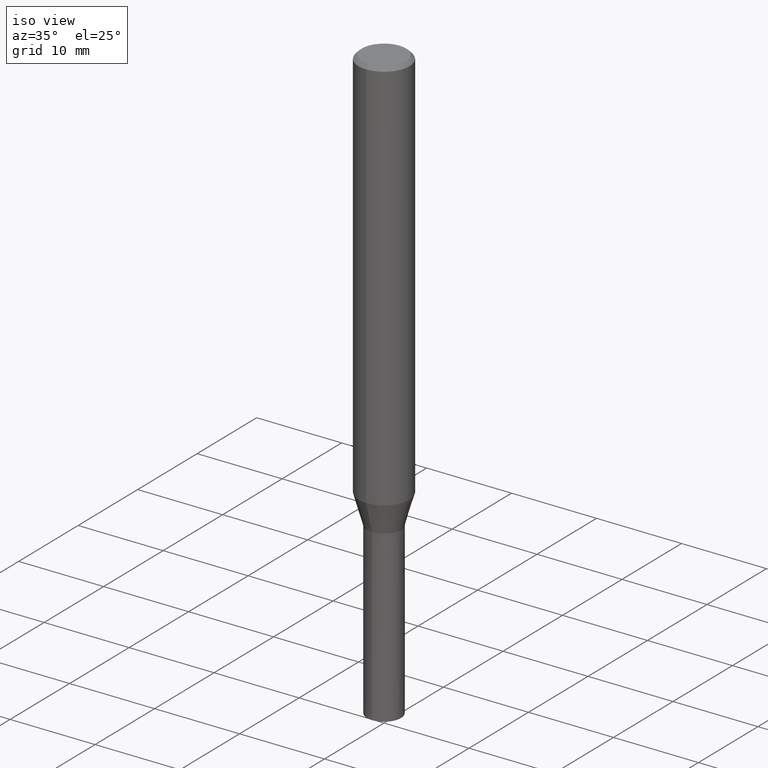
[diagram: clean part render]
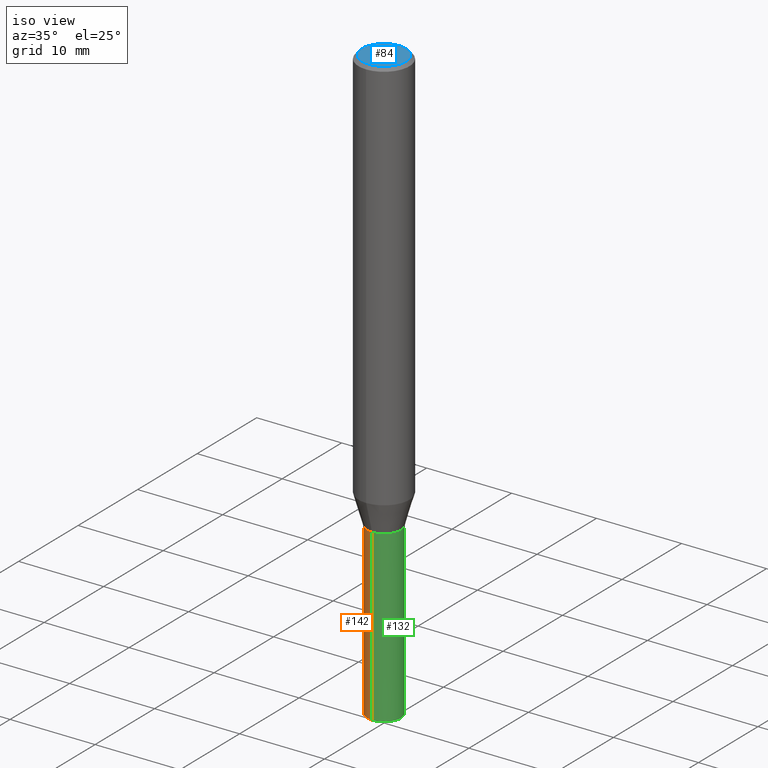
[diagram: same view with three faces highlighted in distinct colors, each labeled with its STEP entity id]
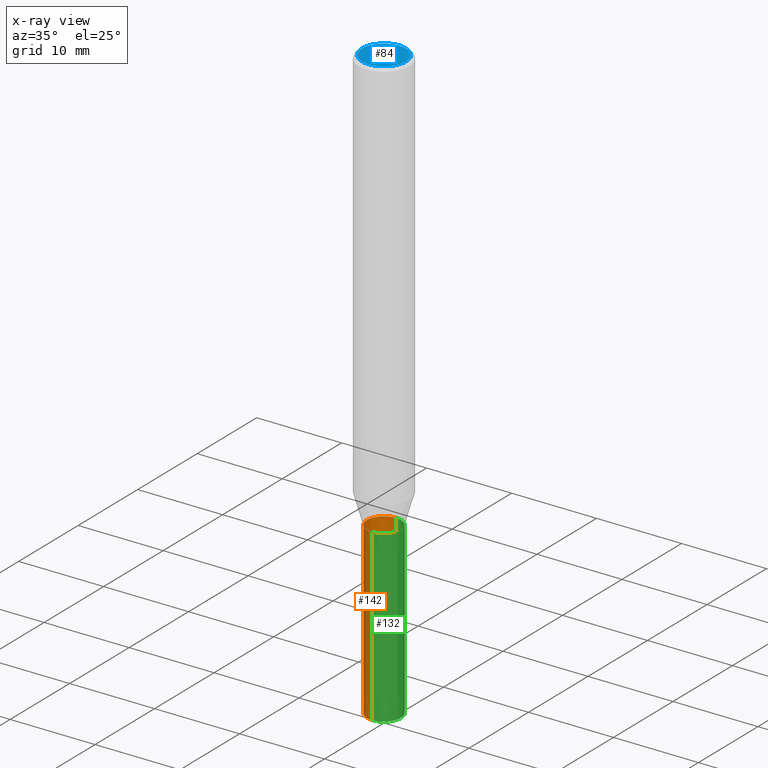
[diagram: x-ray of the same camera — body ghosted, the three highlighted faces saturated]
A machine part, iso view with three faces highlighted in distinct colors.
The next image is the same camera in x-ray (body ghosted, the three faces saturated) — at least one of them is partly hidden behind the body in this view.
Their STEP definitions:

[orange] entity #142 — the highlighted conical surface has half-angle 0 deg.
#90=EDGE_CURVE('',#134,#164,#213,.T.);
#94=VERTEX_POINT('',#217);
#100=EDGE_CURVE('',#134,#94,#224,.T.);
#134=VERTEX_POINT('',#264);
#142=ADVANCED_FACE('',(#272),#273,.T.);
#162=VERTEX_POINT('',#295);
#164=VERTEX_POINT('',#297);
#168=EDGE_CURVE('',#164,#162,#301,.T.);
#184=EDGE_CURVE('',#162,#94,#319,.T.);
#213=LINE('',#342,#343);
#217=CARTESIAN_POINT('',(0.0,2.0,-70.0));
#224=CIRCLE('',#358,2.0);
#264=CARTESIAN_POINT('',(2.44921270764475E-016,-2.0,-70.0));
#272=FACE_OUTER_BOUND('',#419,.T.);
#273=CONICAL_SURFACE('',#420,1.99995,4.99999999995778E-006);
#295=CARTESIAN_POINT('',(0.0,1.9999,-50.0));
#297=CARTESIAN_POINT('',(2.44909024700937E-016,-1.9999,-50.0));
#301=CIRCLE('',#452,1.9999);
#319=LINE('',#473,#474);
#342=CARTESIAN_POINT('',(2.44915147732706E-016,-1.99995,-60.0));
#343=VECTOR('',#493,1.0);
#358=AXIS2_PLACEMENT_3D('',#504,#505,#506);
#419=EDGE_LOOP('',(#576,#577,#578,#579));
#420=AXIS2_PLACEMENT_3D('',#580,#581,#582);
#452=AXIS2_PLACEMENT_3D('',#607,#608,#609);
#473=CARTESIAN_POINT('',(-2.44915147732706E-016,1.99995,-60.0));
#474=VECTOR('',#623,1.0);
#493=DIRECTION('',(-6.12303176903467E-022,4.99999999993695E-006,0.9999999999875));
#504=CARTESIAN_POINT('',(0.0,0.0,-70.0));
#505=DIRECTION('',(0.0,0.0,-1.0));
#506=DIRECTION('',(0.0,1.0,0.0));
#576=ORIENTED_EDGE('',*,*,#184,.T.);
#577=ORIENTED_EDGE('',*,*,#100,.F.);
#578=ORIENTED_EDGE('',*,*,#90,.T.);
#579=ORIENTED_EDGE('',*,*,#168,.T.);
#580=CARTESIAN_POINT('',(0.0,0.0,-60.0));
#581=DIRECTION('',(0.0,-0.0,-1.0));
#582=DIRECTION('',(0.0,1.0,0.0));
#607=CARTESIAN_POINT('',(0.0,0.0,-50.0));
#608=DIRECTION('',(0.0,0.0,-1.0));
#609=DIRECTION('',(0.0,1.0,0.0));
#623=DIRECTION('',(-6.12303176903467E-022,4.99999999993695E-006,-0.9999999999875));

[blue] entity #84 — the highlighted planar face has unit normal (-0, 0, 1).
#84=ADVANCED_FACE('',(#205),#206,.T.);
#88=EDGE_CURVE('',#154,#138,#211,.T.);
#130=EDGE_CURVE('',#138,#154,#259,.T.);
#138=VERTEX_POINT('',#268);
#154=VERTEX_POINT('',#287);
#205=FACE_OUTER_BOUND('',#332,.T.);
#206=PLANE('',#333);
#211=CIRCLE('',#339,2.6);
#259=CIRCLE('',#403,2.6);
#268=CARTESIAN_POINT('',(0.0,2.6,0.0));
#287=CARTESIAN_POINT('',(3.18397651993818E-016,-2.6,0.0));
#332=EDGE_LOOP('',(#477,#478));
#333=AXIS2_PLACEMENT_3D('',#479,#480,#481);
#339=AXIS2_PLACEMENT_3D('',#490,#491,#492);
#403=AXIS2_PLACEMENT_3D('',#560,#561,#562);
#477=ORIENTED_EDGE('',*,*,#130,.F.);
#478=ORIENTED_EDGE('',*,*,#88,.F.);
#479=CARTESIAN_POINT('',(0.0,1.3,0.0));
#480=DIRECTION('',(-0.0,0.0,1.0));
#481=DIRECTION('',(0.0,-1.0,0.0));
#490=CARTESIAN_POINT('',(0.0,0.0,0.0));
#491=DIRECTION('',(0.0,0.0,-1.0));
#492=DIRECTION('',(0.0,1.0,0.0));
#560=CARTESIAN_POINT('',(0.0,0.0,0.0));
#561=DIRECTION('',(0.0,0.0,-1.0));
#562=DIRECTION('',(0.0,1.0,0.0));

[green] entity #132 — the highlighted conical surface has half-angle 0 deg.
#90=EDGE_CURVE('',#134,#164,#213,.T.);
#94=VERTEX_POINT('',#217);
#132=ADVANCED_FACE('',(#261),#262,.T.);
#134=VERTEX_POINT('',#264);
#136=EDGE_CURVE('',#94,#134,#266,.T.);
#162=VERTEX_POINT('',#295);
#164=VERTEX_POINT('',#297);
#166=EDGE_CURVE('',#162,#164,#299,.T.);
#184=EDGE_CURVE('',#162,#94,#319,.T.);
#213=LINE('',#342,#343);
#217=CARTESIAN_POINT('',(0.0,2.0,-70.0));
#261=FACE_OUTER_BOUND('',#405,.T.);
#262=CONICAL_SURFACE('',#406,1.99995,4.99999999995778E-006);
#264=CARTESIAN_POINT('',(2.44921270764475E-016,-2.0,-70.0));
#266=CIRCLE('',#411,2.0);
#295=CARTESIAN_POINT('',(0.0,1.9999,-50.0));
#297=CARTESIAN_POINT('',(2.44909024700937E-016,-1.9999,-50.0));
#299=CIRCLE('',#449,1.9999);
#319=LINE('',#473,#474);
#342=CARTESIAN_POINT('',(2.44915147732706E-016,-1.99995,-60.0));
#343=VECTOR('',#493,1.0);
#405=EDGE_LOOP('',(#564,#565,#566,#567));
#406=AXIS2_PLACEMENT_3D('',#568,#569,#570);
#411=AXIS2_PLACEMENT_3D('',#571,#572,#573);
#449=AXIS2_PLACEMENT_3D('',#604,#605,#606);
#473=CARTESIAN_POINT('',(-2.44915147732706E-016,1.99995,-60.0));
#474=VECTOR('',#623,1.0);
#493=DIRECTION('',(-6.12303176903467E-022,4.99999999993695E-006,0.9999999999875));
#564=ORIENTED_EDGE('',*,*,#184,.F.);
#565=ORIENTED_EDGE('',*,*,#166,.T.);
#566=ORIENTED_EDGE('',*,*,#90,.F.);
#567=ORIENTED_EDGE('',*,*,#136,.F.);
#568=CARTESIAN_POINT('',(0.0,0.0,-60.0));
#569=DIRECTION('',(0.0,-0.0,-1.0));
#570=DIRECTION('',(0.0,1.0,0.0));
#571=CARTESIAN_POINT('',(0.0,0.0,-70.0));
#572=DIRECTION('',(0.0,0.0,-1.0));
#573=DIRECTION('',(0.0,1.0,0.0));
#604=CARTESIAN_POINT('',(0.0,0.0,-50.0));
#605=DIRECTION('',(0.0,0.0,-1.0));
#606=DIRECTION('',(0.0,1.0,0.0));
#623=DIRECTION('',(-6.12303176903467E-022,4.99999999993695E-006,-0.9999999999875));